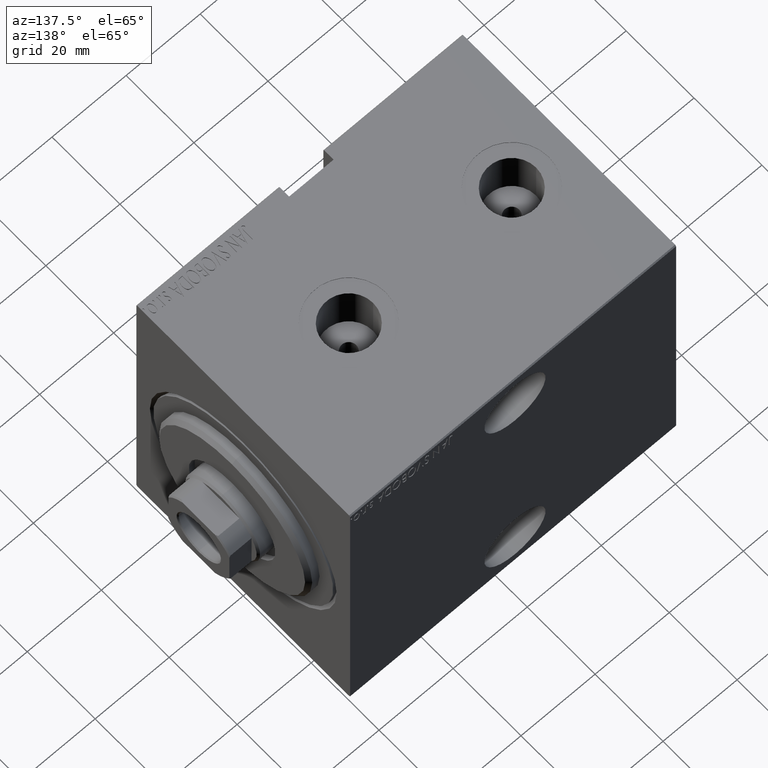
[diagram: clean part render]
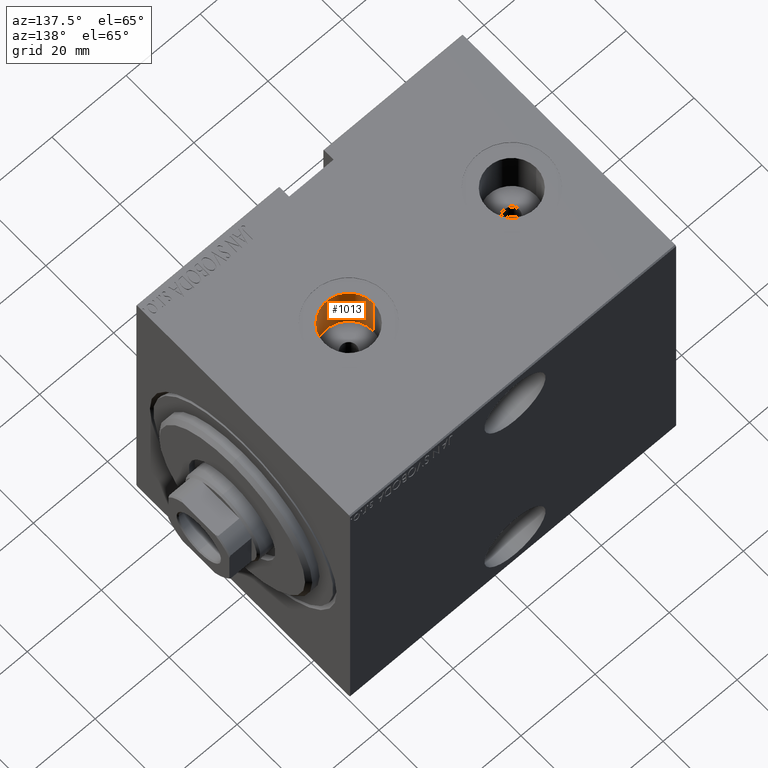
[diagram: same view with one face highlighted and labeled with its STEP entity id]
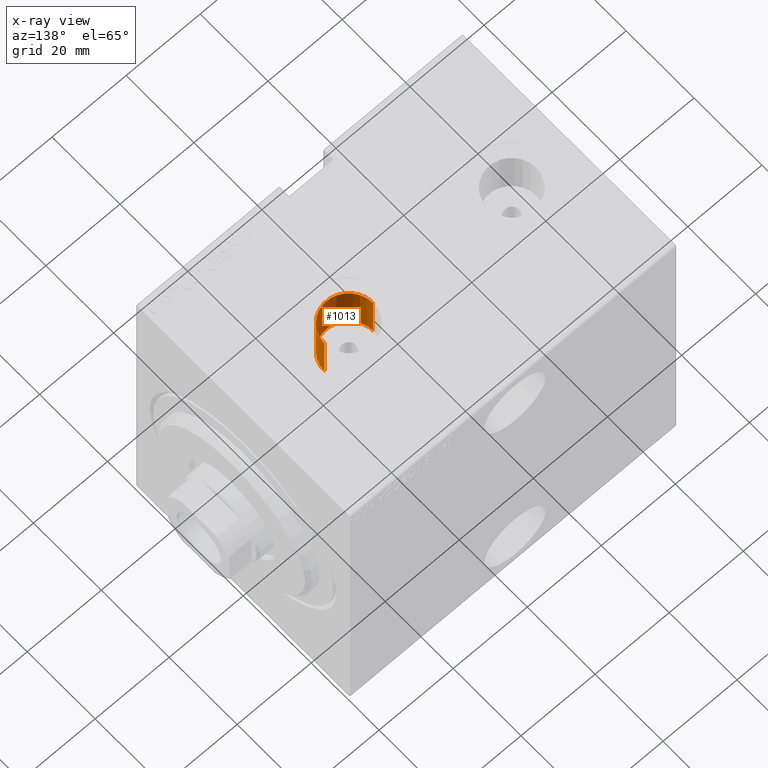
[diagram: x-ray of the same camera — body ghosted, the highlighted face saturated]
A machine part, auxiliary view. The second image highlights one B-rep face of the part: STEP entity #1013.
The next image is the same camera in x-ray: the body ghosted, the highlighted face saturated — about 0% of this face is hidden behind the body in this view.
In plain terms, the highlighted cylindrical surface (edge-blend (fillet) strip) has radius 6.58 mm, axis along (0, 0, 1).
Its self-contained STEP definition (entity closure, byte-faithful):
#1013 = ADVANCED_FACE ( 'NONE', ( #26248 ), #35398, .F. ) ;
#1824 = LINE ( 'NONE', #17655, #16797 ) ;
#3123 = EDGE_LOOP ( 'NONE', ( #30077, #9249, #18865, #18162 ) ) ;
#3641 = CARTESIAN_POINT ( 'NONE',  ( 28.50000000000000000, -9.361999711620863359E-15, 42.39999999999999147 ) ) ;
#4397 = EDGE_CURVE ( 'NONE', #25266, #40961, #1824, .T. ) ;
#4567 = VECTOR ( 'NONE', #23978, 1000.000000000000000 ) ;
#7302 = CARTESIAN_POINT ( 'NONE',  ( 35.07999999999999829, -9.361999711620863359E-15, 29.23999999999999488 ) ) ;
#8612 = CIRCLE ( 'NONE', #40493, 6.579999999999999183 ) ;
#9249 = ORIENTED_EDGE ( 'NONE', *, *, #33884, .F. ) ;
#9359 = CARTESIAN_POINT ( 'NONE',  ( 21.92000000000000171, -8.556182117781905894E-15, 42.39999999999999147 ) ) ;
#10591 = VERTEX_POINT ( 'NONE', #22032 ) ;
#11071 = DIRECTION ( 'NONE',  ( 1.000000000000000000, 0.000000000000000000, 0.000000000000000000 ) ) ;
#12595 = DIRECTION ( 'NONE',  ( 1.000000000000000000, 0.000000000000000000, 0.000000000000000000 ) ) ;
#14316 = CARTESIAN_POINT ( 'NONE',  ( 28.50000000000000000, -9.361999711620863359E-15, 29.23999999999999488 ) ) ;
#14835 = DIRECTION ( 'NONE',  ( -0.000000000000000000, -0.000000000000000000, 1.000000000000000000 ) ) ;
#16797 = VECTOR ( 'NONE', #14835, 1000.000000000000000 ) ;
#17655 = CARTESIAN_POINT ( 'NONE',  ( 21.92000000000000171, -8.556182117781905894E-15, 29.23999999999999488 ) ) ;
#18162 = ORIENTED_EDGE ( 'NONE', *, *, #31938, .T. ) ;
#18865 = ORIENTED_EDGE ( 'NONE', *, *, #39514, .T. ) ;
#20098 = CARTESIAN_POINT ( 'NONE',  ( 21.92000000000000171, -8.556182117781905894E-15, 29.23999999999999488 ) ) ;
#20321 = AXIS2_PLACEMENT_3D ( 'NONE', #3641, #42722, #36414 ) ;
#22032 = CARTESIAN_POINT ( 'NONE',  ( 35.07999999999999829, -9.361999711620863359E-15, 42.39999999999999147 ) ) ;
#23978 = DIRECTION ( 'NONE',  ( -0.000000000000000000, -0.000000000000000000, 1.000000000000000000 ) ) ;
#25015 = AXIS2_PLACEMENT_3D ( 'NONE', #35615, #39289, #12595 ) ;
#25266 = VERTEX_POINT ( 'NONE', #20098 ) ;
#26248 = FACE_OUTER_BOUND ( 'NONE', #3123, .T. ) ;
#29701 = VERTEX_POINT ( 'NONE', #7302 ) ;
#30077 = ORIENTED_EDGE ( 'NONE', *, *, #4397, .F. ) ;
#31032 = DIRECTION ( 'NONE',  ( 0.000000000000000000, 0.000000000000000000, 1.000000000000000000 ) ) ;
#31938 = EDGE_CURVE ( 'NONE', #10591, #40961, #37647, .T. ) ;
#33884 = EDGE_CURVE ( 'NONE', #29701, #25266, #8612, .T. ) ;
#33968 = LINE ( 'NONE', #37218, #4567 ) ;
#35398 = CYLINDRICAL_SURFACE ( 'NONE', #25015, 6.579999999999999183 ) ;
#35615 = CARTESIAN_POINT ( 'NONE',  ( 28.50000000000000000, -9.361999711620863359E-15, 29.23999999999999488 ) ) ;
#36414 = DIRECTION ( 'NONE',  ( 1.000000000000000000, 0.000000000000000000, 0.000000000000000000 ) ) ;
#37218 = CARTESIAN_POINT ( 'NONE',  ( 35.07999999999999829, -9.361999711620863359E-15, 29.23999999999999488 ) ) ;
#37647 = CIRCLE ( 'NONE', #20321, 6.579999999999999183 ) ;
#39289 = DIRECTION ( 'NONE',  ( -0.000000000000000000, -0.000000000000000000, 1.000000000000000000 ) ) ;
#39514 = EDGE_CURVE ( 'NONE', #29701, #10591, #33968, .T. ) ;
#40493 = AXIS2_PLACEMENT_3D ( 'NONE', #14316, #31032, #11071 ) ;
#40961 = VERTEX_POINT ( 'NONE', #9359 ) ;
#42722 = DIRECTION ( 'NONE',  ( 0.000000000000000000, 0.000000000000000000, 1.000000000000000000 ) ) ;